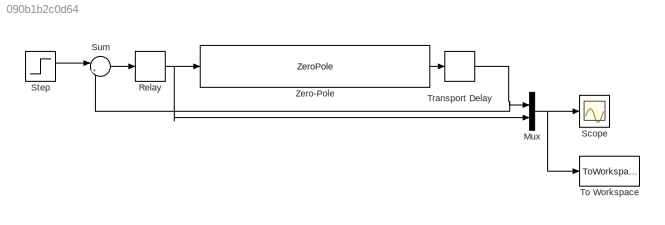
MODEL slx_090b1b2c0d64
KIND model
BLOCK [Mux] Mux
  DisplayOption = bar
  Inputs = 2
  Ports = [2, 1]
BLOCK [Relay] Relay
  InputProcessing = Elements as channels (sample based)
  OffOutputValue = -1
  OffSwitchValue = 0
  OnSwitchValue = 0
BLOCK [Scope] Scope
  Floating = off
  NumInputPorts = 1
  Ports = [1]
  ShowLegends = off
  TimeRange = 100
  ZoomMode = yonly
BLOCK [Step] Step
  SampleTime = 0
  Time = 65
BLOCK [Sum] Sum
  IconShape = round
  InputSameDT = off
  Inputs = |+-
  OutDataTypeStr = Inherit: Inherit via internal rule
  Ports = [2, 1]
  SaturateOnIntegerOverflow = off
BLOCK [ToWorkspace] To Workspace
  FixptAsFi = on
  MaxDataPoints = inf
  Ports = [1]
  SampleTime = -1
  Save2DSignal = 3-D array (concatenate along third dimension)
  SaveFormat = Timeseries
  VariableName = simout
BLOCK [TransportDelay] Transport Delay
  DelayTime = 2.5
  Ports = [1, 1]
BLOCK [ZeroPole] Zero-Pole
  Poles = [-1 -1 -1 -2 -2 -2 -5]
  Zeros = [-3.5]
NET Mux:1 -> Scope:1, To Workspace:1
NET Relay:1 -> Mux:2, Zero-Pole:1
LINE Step:1 -> Sum:1
LINE Sum:1 -> Relay:1
NET Transport Delay:1 -> Mux:1, Sum:2
LINE Zero-Pole:1 -> Transport Delay:1
note: NET lines group one-source signal fan-out (src -> all destinations, sorted); 1:1 wires keep LINE
